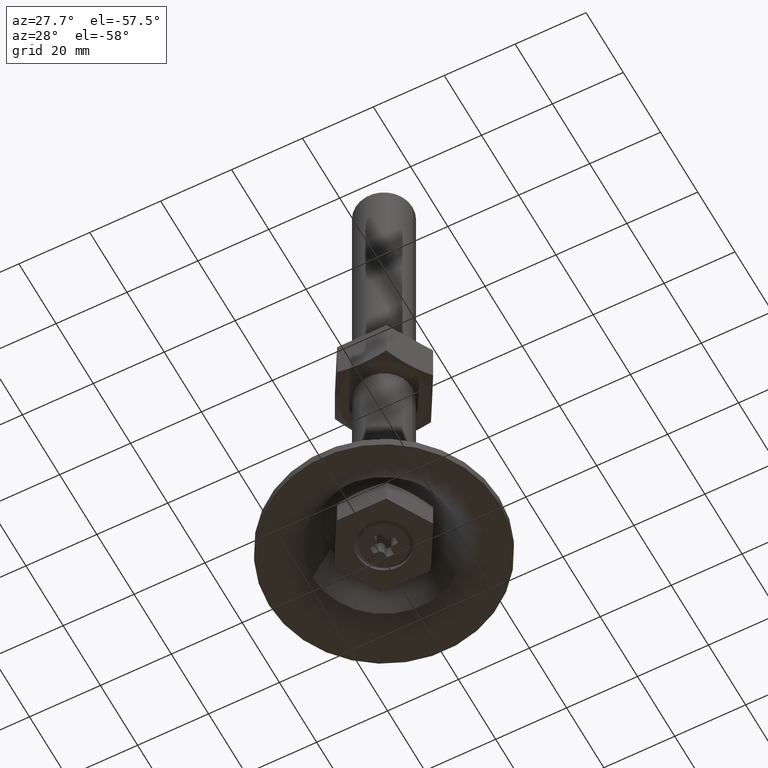
[diagram: clean part render]
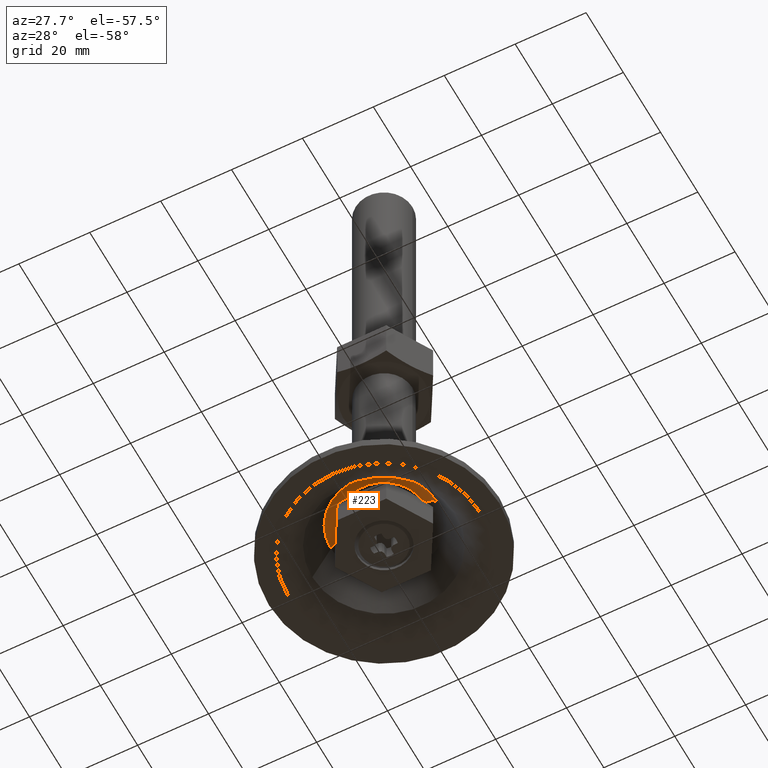
[diagram: same view with one face highlighted and labeled with its STEP entity id]
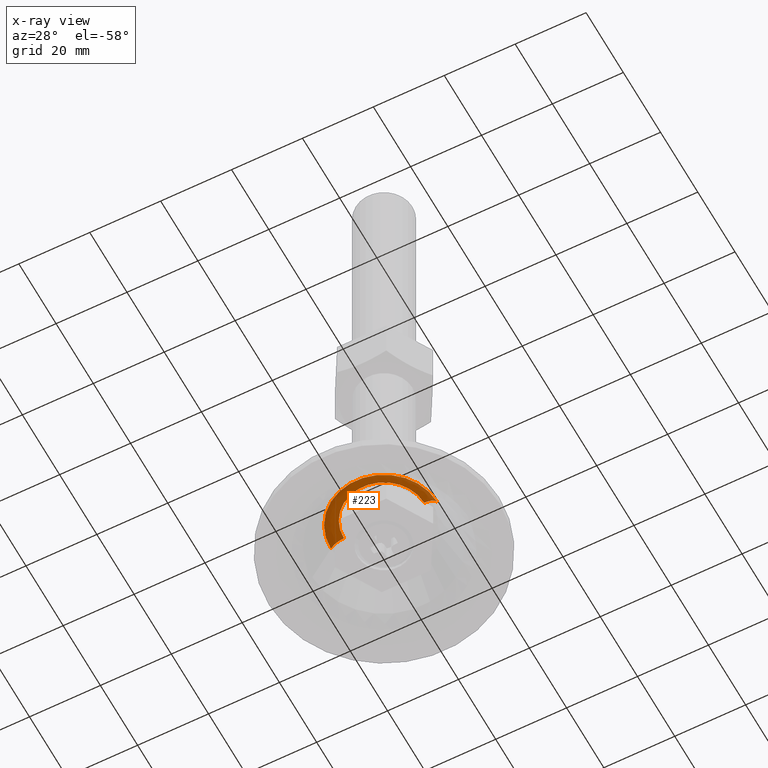
[diagram: x-ray of the same camera — body ghosted, the highlighted face saturated]
A machine part, auxiliary view. The second image highlights one B-rep face of the part: STEP entity #223.
The next image is the same camera in x-ray: the body ghosted, the highlighted face saturated — about 0% of this face is hidden behind the body in this view.
In plain terms, the highlighted face is a freeform B-spline surface patch.
Its self-contained STEP definition (entity closure, byte-faithful):
#223=ADVANCED_FACE('',(#992),#991,.F.);
#991=( BOUNDED_SURFACE() B_SPLINE_SURFACE( 2,2,((#1605,#1606,#1607,#1608,#1609),(#1610,#1611,#1612,#1613,#1614),(#1615,#1616,#1617,#1618,#1619),(#1620,#1621,#1622,#1623,#1624),(#1625,#1626,#1627,#1628,#1629)), .UNSPECIFIED.,.F.,.F.,.F.) B_SPLINE_SURFACE_WITH_KNOTS((3,2,3),(3,2,3),(0.00000000000E+00,5.00000000000E-01,1.00000000000E+00),(0.00000000000E+00,5.00000000000E-01,1.00000000000E+00), .UNSPECIFIED. ) GEOMETRIC_REPRESENTATION_ITEM() RATIONAL_B_SPLINE_SURFACE(((1.00000000000E+00,8.62734385978E-01,1.00000000000E+00,8.62734385978E-01,1.00000000000E+00),(7.07106781187E-01,6.10045334688E-01,7.07106781187E-01,6.10045334688E-01,7.07106781187E-01),(1.00000000000E+00,8.62734385978E-01,1.00000000000E+00,8.62734385978E-01,1.00000000000E+00),(7.07106781187E-01,6.10045334688E-01,7.07106781187E-01,6.10045334688E-01,7.07106781187E-01),(1.00000000000E+00,8.62734385978E-01,1.00000000000E+00,8.62734385978E-01,1.00000000000E+00))) REPRESENTATION_ITEM('') SURFACE() );
#992=FACE_OUTER_BOUND('',#1630,.T.);
#1605=CARTESIAN_POINT('',(7.63551677034E+00,-9.35050235171E-16,-1.46477907856E+01));
#1606=CARTESIAN_POINT('',(8.83833740411E+00,-1.08234841423E-15,-1.24999999999E+01));
#1607=CARTESIAN_POINT('',(1.13000000000E+01,-1.38380517983E-15,-1.24999999999E+01));
#1608=CARTESIAN_POINT('',(1.37616625960E+01,-1.68526194542E-15,-1.24999999999E+01));
#1609=CARTESIAN_POINT('',(1.49644832298E+01,-1.83256012449E-15,-1.46477907856E+01));
#1610=CARTESIAN_POINT('',(7.63551677034E+00,-7.63551677037E+00,-1.46477907856E+01));
#1611=CARTESIAN_POINT('',(8.83833740411E+00,-8.83833740414E+00,-1.24999999999E+01));
#1612=CARTESIAN_POINT('',(1.13000000000E+01,-1.13000000001E+01,-1.24999999999E+01));
#1613=CARTESIAN_POINT('',(1.37616625960E+01,-1.37616625960E+01,-1.24999999999E+01));
#1614=CARTESIAN_POINT('',(1.49644832298E+01,-1.49644832298E+01,-1.46477907856E+01));
#1615=CARTESIAN_POINT('',(-3.19471350433E-11,-7.63551677037E+00,-1.46477907856E+01));
#1616=CARTESIAN_POINT('',(-3.19472086899E-11,-8.83833740414E+00,-1.24999999999E+01));
#1617=CARTESIAN_POINT('',(-3.19473594133E-11,-1.13000000001E+01,-1.24999999999E+01));
#1618=CARTESIAN_POINT('',(-3.19475101367E-11,-1.37616625960E+01,-1.24999999999E+01));
#1619=CARTESIAN_POINT('',(-3.19475837834E-11,-1.49644832298E+01,-1.46477907856E+01));
#1620=CARTESIAN_POINT('',(-7.63551677040E+00,-7.63551677037E+00,-1.46477907856E+01));
#1621=CARTESIAN_POINT('',(-8.83833740417E+00,-8.83833740414E+00,-1.24999999999E+01));
#1622=CARTESIAN_POINT('',(-1.13000000001E+01,-1.13000000001E+01,-1.24999999999E+01));
#1623=CARTESIAN_POINT('',(-1.37616625960E+01,-1.37616625960E+01,-1.24999999999E+01));
#1624=CARTESIAN_POINT('',(-1.49644832298E+01,-1.49644832298E+01,-1.46477907856E+01));
#1625=CARTESIAN_POINT('',(-7.63551677040E+00,-3.08820957135E-20,-1.46477907856E+01));
#1626=CARTESIAN_POINT('',(-8.83833740417E+00,-3.57469428557E-20,-1.24999999999E+01));
#1627=CARTESIAN_POINT('',(-1.13000000001E+01,-4.57032172229E-20,-1.24999999999E+01));
#1628=CARTESIAN_POINT('',(-1.37616625960E+01,-5.56594915904E-20,-1.24999999999E+01));
#1629=CARTESIAN_POINT('',(-1.49644832298E+01,-6.05243387324E-20,-1.46477907856E+01));
#1630=EDGE_LOOP('',(#2229,#2230,#2231,#2232));
#2229=ORIENTED_EDGE('',*,*,#2466,.F.);
#2230=ORIENTED_EDGE('',*,*,#2477,.T.);
#2231=ORIENTED_EDGE('',*,*,#2478,.T.);
#2232=ORIENTED_EDGE('',*,*,#2479,.F.);
#2466=EDGE_CURVE('',#3646,#3645,#3653,.T.);
#2477=EDGE_CURVE('',#3646,#3729,#3730,.T.);
#2478=EDGE_CURVE('',#3729,#3736,#3737,.T.);
#2479=EDGE_CURVE('',#3645,#3736,#3743,.T.);
#3645=VERTEX_POINT('',#4697);
#3646=VERTEX_POINT('',#4698);
#3653=CIRCLE('',#4706,1.13000000001E+01);
#3729=VERTEX_POINT('',#4757);
#3730=(BOUNDED_CURVE() B_SPLINE_CURVE(2,(#4758,#4759,#4760),.UNSPECIFIED.,.F.,.F.) B_SPLINE_CURVE_WITH_KNOTS((3,3),(5.00000000000E-01,1.00000000000E+00),.UNSPECIFIED.) CURVE() GEOMETRIC_REPRESENTATION_ITEM() RATIONAL_B_SPLINE_CURVE((1.00000000000E+00,8.62734385978E-01,1.00000000000E+00)) REPRESENTATION_ITEM('') );
#3736=VERTEX_POINT('',#4761);
#3737=CIRCLE('',#4765,1.49644832298E+01);
#3743=(BOUNDED_CURVE() B_SPLINE_CURVE(3,(#4766,#4767,#4768,#4769,#4770),.UNSPECIFIED.,.F.,.F.) B_SPLINE_CURVE_WITH_KNOTS((4,1,4),(4.99999968804E-01,7.49999983315E-01,1.00000000000E+00),.UNSPECIFIED.) CURVE() GEOMETRIC_REPRESENTATION_ITEM() RATIONAL_B_SPLINE_CURVE((1.00000000000E+00,1.00000000000E+00,1.00000000000E+00,1.00000000000E+00,1.00000000000E+00)) REPRESENTATION_ITEM('') );
#4697=CARTESIAN_POINT('',(-1.13000000001E+01,0.00000000000E+00,-1.24999999999E+01));
#4698=CARTESIAN_POINT('',(1.13000000000E+01,5.92118946467E-16,-1.24999999999E+01));
#4703=CARTESIAN_POINT('',(-3.19460013998E-11,0.00000000000E+00,-1.24999999999E+01));
#4704=DIRECTION('',(-0.00000000000E+00,0.00000000000E+00,-1.00000000000E+00));
#4705=DIRECTION('',(-1.00000000000E+00,-1.22460635382E-16,0.00000000000E+00));
#4706=AXIS2_PLACEMENT_3D('',#4703,#4704,#4705);
#4757=CARTESIAN_POINT('',(1.49644832298E+01,1.18423789293E-15,-1.46477907856E+01));
#4758=CARTESIAN_POINT('',(1.13000000000E+01,-1.38380517983E-15,-1.24999999999E+01));
#4759=CARTESIAN_POINT('',(1.37616625960E+01,-1.68526194542E-15,-1.24999999999E+01));
#4760=CARTESIAN_POINT('',(1.49644832298E+01,-1.83256012449E-15,-1.46477907856E+01));
#4761=CARTESIAN_POINT('',(-1.49644832298E+01,0.00000000000E+00,-1.46477907856E+01));
#4762=CARTESIAN_POINT('',(-3.19460013998E-11,0.00000000000E+00,-1.46477907856E+01));
#4763=DIRECTION('',(-0.00000000000E+00,0.00000000000E+00,-1.00000000000E+00));
#4764=DIRECTION('',(-1.00000000000E+00,-1.22460635382E-16,0.00000000000E+00));
#4765=AXIS2_PLACEMENT_3D('',#4762,#4763,#4764);
#4766=CARTESIAN_POINT('',(-1.12999997351E+01,1.18423791322E-15,-1.24999999999E+01));
#4767=CARTESIAN_POINT('',(-1.20389035318E+01,1.44690956880E-15,-1.24981077919E+01));
#4768=CARTESIAN_POINT('',(-1.35255249167E+01,1.95295219792E-15,-1.29028893155E+01));
#4769=CARTESIAN_POINT('',(-1.46050900394E+01,2.27621491896E-15,-1.40021756174E+01));
#4770=CARTESIAN_POINT('',(-1.49644832298E+01,2.36847578587E-15,-1.46477907856E+01));